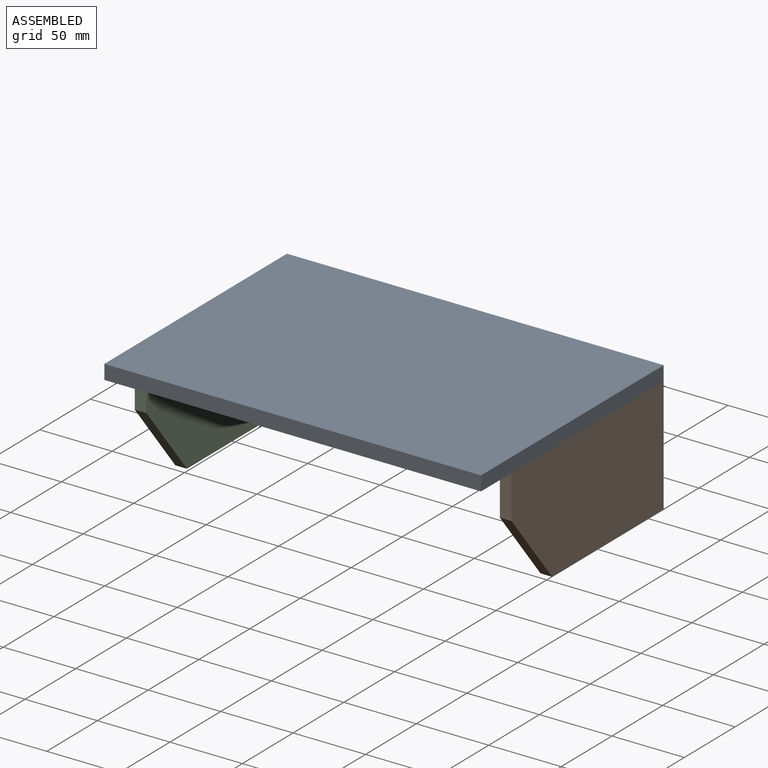
[diagram: assembled view]
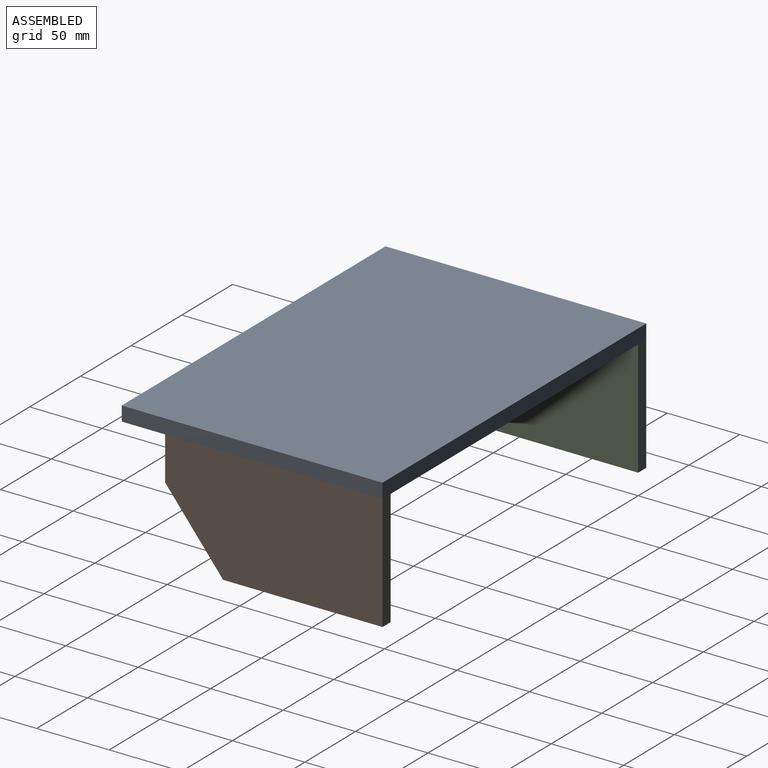
[diagram: assembled view, second angle]
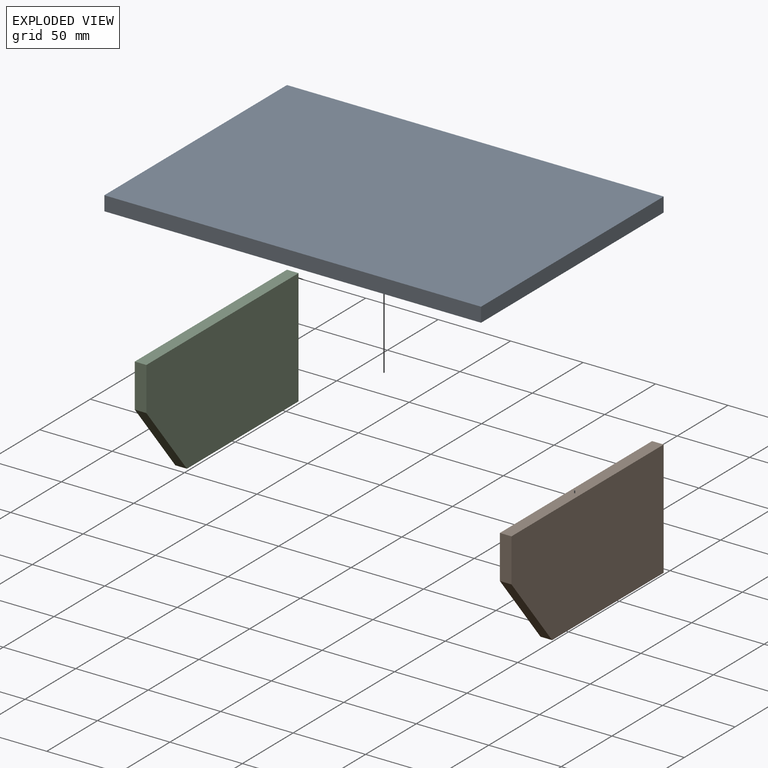
[diagram: exploded view]
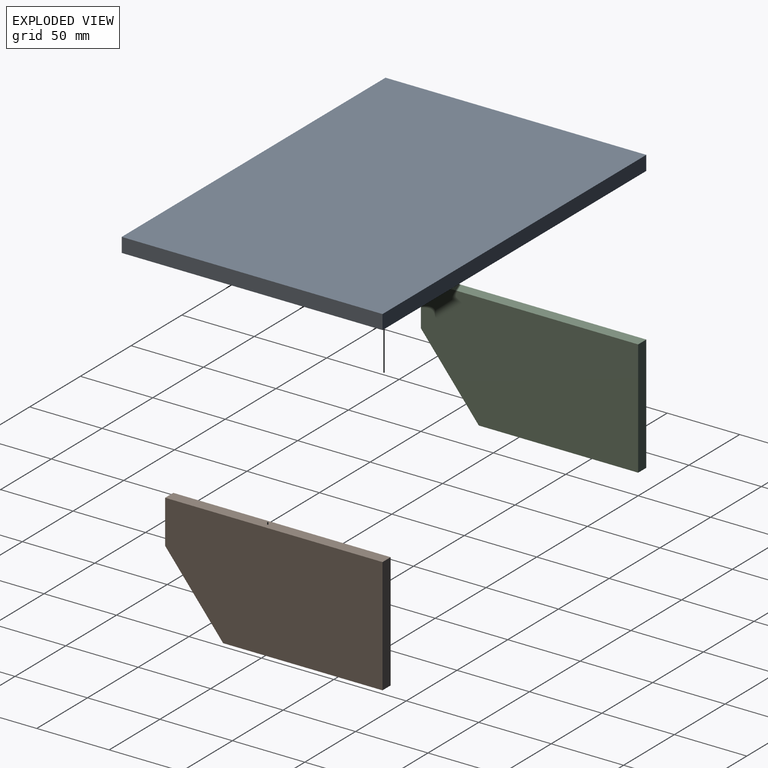
[diagram: exploded view, second angle]
ASSEMBLY  parts=3 mates=2
PART A: 6 faces, bbox 260x180x10 mm
  f0: plane 260x10mm, normal (0,-1,0), area 2600mm2, adj f1,f3,f4,f5
  f1: plane 180x10mm, normal (1,0,0), area 1800mm2, adj f0,f2,f4,f5
  f2: plane 260x10mm, normal (0,1,0), area 2600mm2, adj f1,f3,f4,f5
  f3: plane 180x10mm, normal (-1,0,0), area 1800mm2, adj f0,f2,f4,f5
  f4: plane 260x180mm, normal (0,0,1), area 46800mm2, adj f0,f1,f2,f3
  f5: plane 260x180mm, normal (0,0,-1), area 46800mm2, adj f0,f1,f2,f3
PART B: 7 faces, bbox 8x150x80 mm
  f0: plane 30x8mm, normal (0,-1,0), area 240mm2, adj f1,f4,f5,f6
  f1: plane 50x40mm, normal (0,-0.78,-0.62), area 512.2mm2, adj f0,f2,f5,f6
  f2: plane 110x8mm, normal (0,0,-1), area 880mm2, adj f1,f3,f5,f6
  f3: plane 80x8mm, normal (0,1,0), area 640mm2, adj f2,f4,f5,f6
  f4: plane 150x8mm, normal (0,0,1), area 1200mm2, adj f0,f3,f5,f6
  f5: plane 150x80mm, normal (1,0,0), area 11000mm2, adj f0,f1,f2,f3,f4
  f6: plane 150x80mm, normal (-1,0,0), area 11000mm2, adj f0,f1,f2,f3,f4
PART C: same geometry as B
PLACE A t=(-25.19,-3.01,12.3)mm
PLACE B t=(96.81,11.99,-27.7)mm
PLACE C t=(-155.19,11.99,-27.7)mm
MATE fastened B.f4 <-> A.f5  axis (0,0,1) through (104.81,86.99,12.3)mm
MATE fastened C.f4 <-> A.f5  axis (0,0,1) through (-155.19,86.99,12.3)mm
